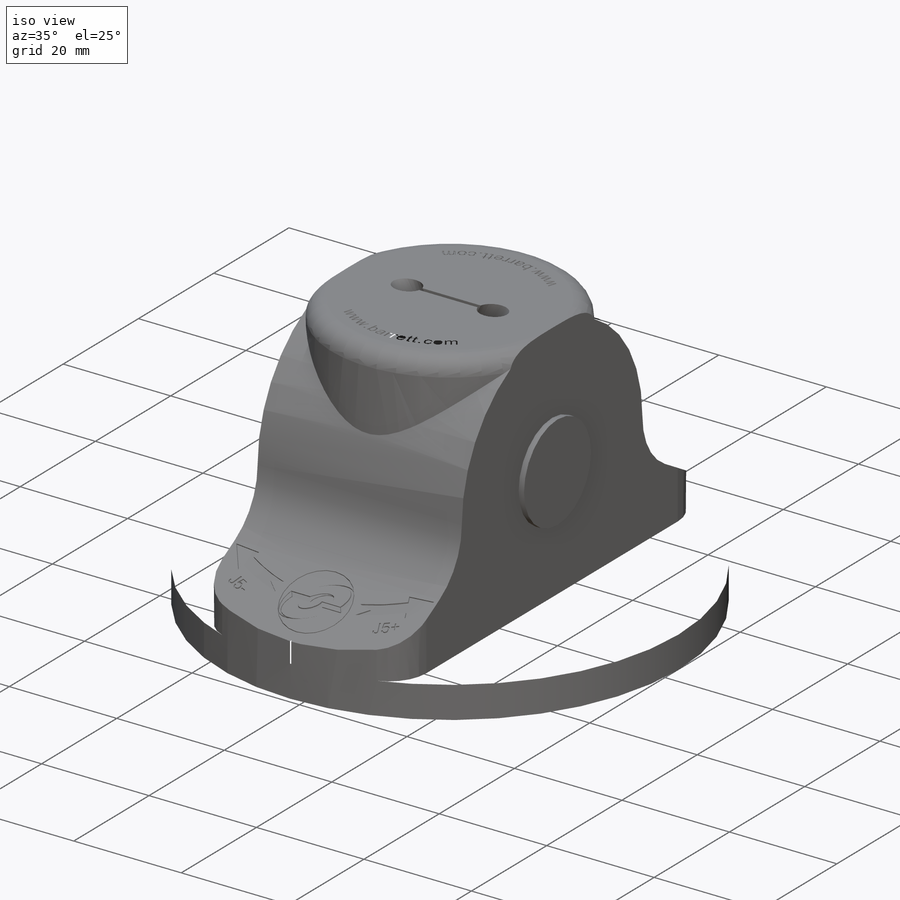
[diagram: iso view]
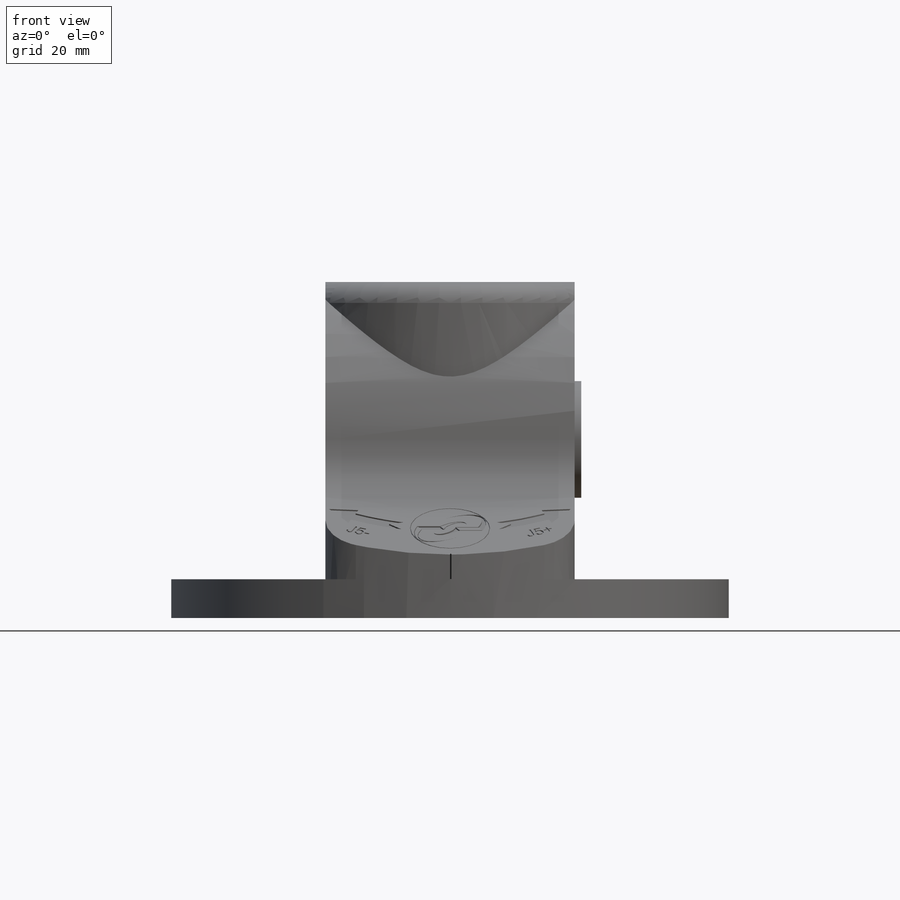
[diagram: front view]
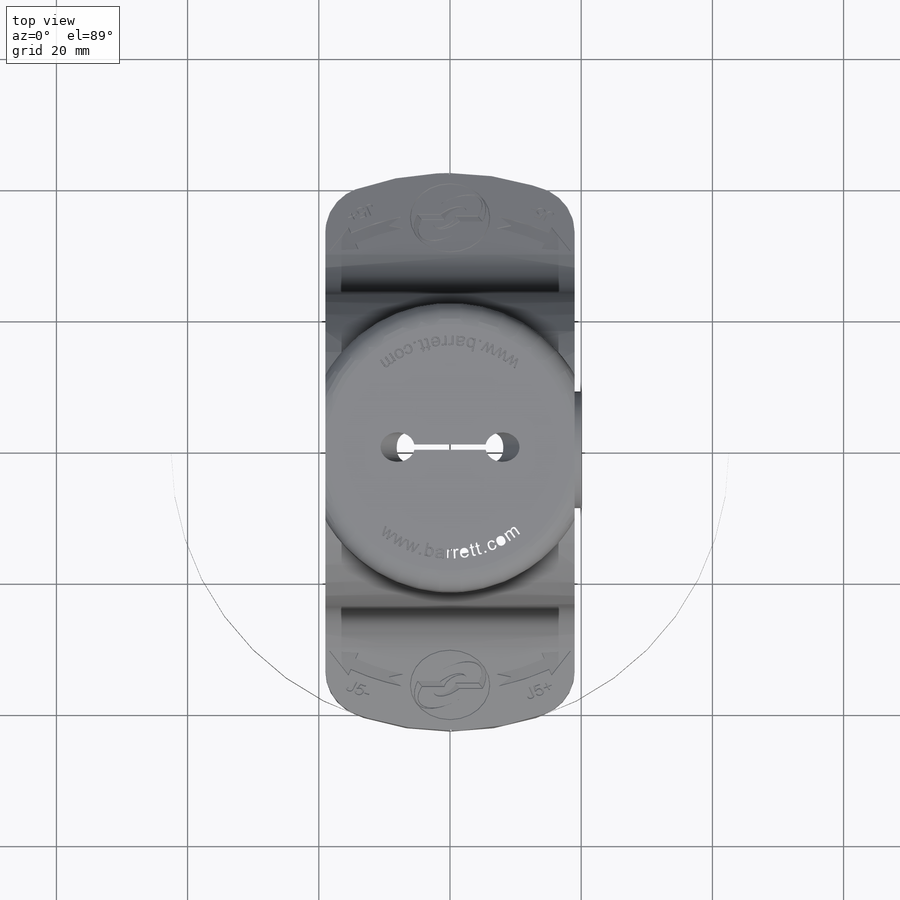
[diagram: top view]
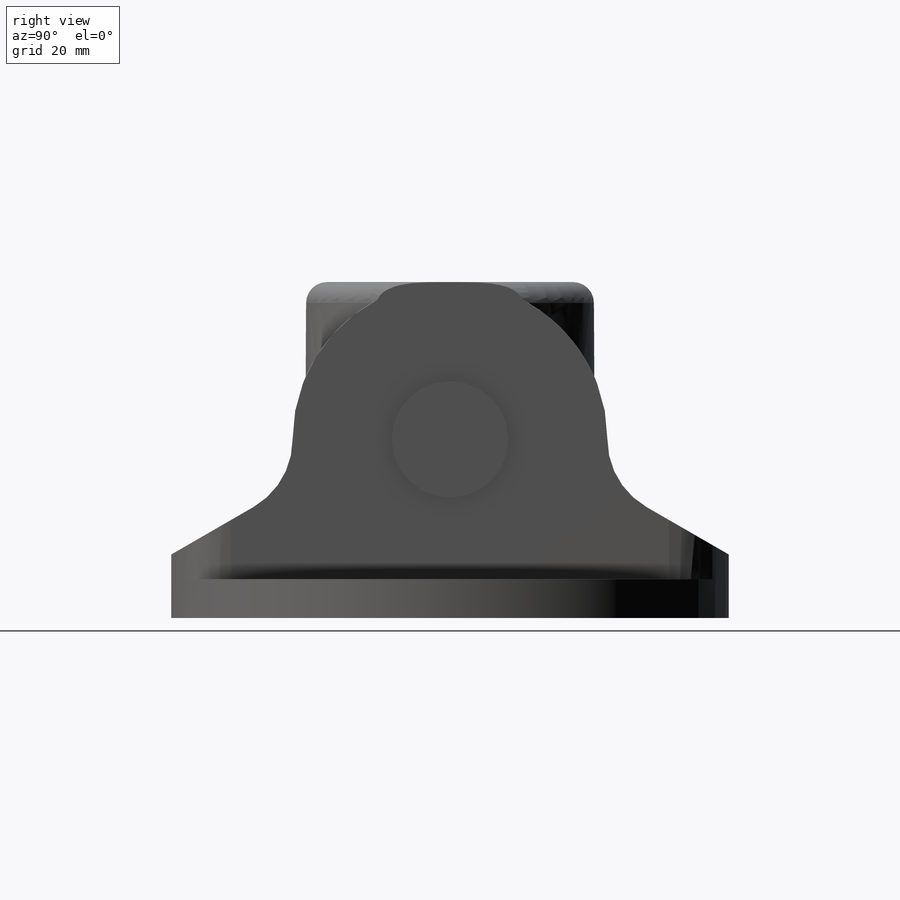
[diagram: right view]
SOLIDWORKS PART (.sldprt)
format: sldprt  version: not decoded by parser v0  size: 2,176,000 bytes
history: native  units: mm
features: sketch x13, cut_extrude x6, revolve x3, mirror x3, cut_revolve x2, pattern_circular x2, material x1, extrude x1, fillet x1, plane x1 (+11 scaffold rows collapsed)
feature tree (44):
  scaffold x11  (default folders/planes/origin — collapsed)
  material  "Material <not specified>"
  sketch  "Sketch1"  dims[c1.D1=3.175mm c1.D2=1.0mm c1.D3=~10.374255mm c2.D3=45.0deg c2.D4=24.0mm c2.D5=17.0mm c2.D6=44.0mm c2.D7=6.5mm c2.D8=1.5mm c2.D9=16.5mm c2.D10=40.0mm c3.D6=2.0mm c3.D11=28.0mm c3.D12=14.0mm c3.D2=24.0mm c3.D3=22.0mm]
  revolve  "Cylinder"  Angle=180deg
  sketch  "Sketch2"  dims[c1.D3=10.0mm c1.D1=7.0mm c1.D2=24.2mm c2.D2=~206.930691deg c3.D2=22.0mm c4.D2=30.0deg c4.D4=21.3mm c4.D5=42.5mm c4.D6=17.0mm c4.D7=14.0mm c4.D8=~3.141522mm c5.D5=42.5mm c5.D1=7.0mm c5.D2=24.2mm c6.D2=30.0deg c6.D1=7.0mm]
  extrude  "OuterProfiile"  [1 undecoded]
  sketch  "Sketch3"  dims[D1=38.0mm]
  cut_extrude  "Side-To-SideTrim"  [1 undecoded]
  sketch  "Sketch13"
  cut_extrude  "TrimODtoWristOD"  [1 undecoded]
  fillet  "CosmeticRadius"  Radius=7mm
  sketch  "Sketch14"  dims[c1.D1=4.5mm c1.D2=8.0mm c1.D3=~13.318186mm c2.D3=30.0deg c2.D1=4.5mm c2.D2=8.0mm]
  cut_revolve  "4.5mmWireHole"  Angle=360deg
  mirror  "Mirror2"
  sketch  "Sketch15"  dims[c1.D1=0.4mm c1.D2=1.0mm c1.D3=8.0mm c2.D3=~4.289153deg]
  cut_extrude  "Cut-Extrude10"  [1 undecoded]
  sketch  "Sketch17"  dims[D1=0.0mm]
  cut_extrude  "Graphics"  Depth=0.2mm
  sketch  "Sketch18"  dims[D1=34.0mm]
  cut_extrude  "www"  Depth=0.2mm
  sketch  "Sketch19"  dims[D1=~0.434465mm D2=0.2mm]
  cut_extrude  "zeromark"  [1 undecoded]
  sketch  "Sketch22"  dims[D1=1.0mm D2=1.0mm D3=17.78mm]
  revolve  "Revolve2"  Angle=360deg
  sketch  "Sketch20"  dims[D1=2.0mm D2=3.0mm D3=8.255mm]
  cut_revolve  "Cut-Revolve1"  Angle=360deg
  pattern_circular  "CirPattern1"  Count=2 Angle=360deg
  sketch  "Sketch21"  dims[c1.D1=6.0mm c1.D2=85.0mm c2.D1=27.21mm]
  revolve  "Revolve1"  Angle=360deg
  mirror  "wrist_yaw_axis"
  mirror  "wrist_pitch_axis"
  plane  "Plane2"
  sketch  "Sketch23"
  pattern_circular  "Point2"  [2 undecoded]
decode coverage: 20 of 31 modeling features carry decoded parameters
note: ~ marks probable driven/reference dimensions
note: 7 parameter values undecoded
summary: no parameter record found for 5 features
note: suppression state not decoded; provenance and decode notes live in map.json
